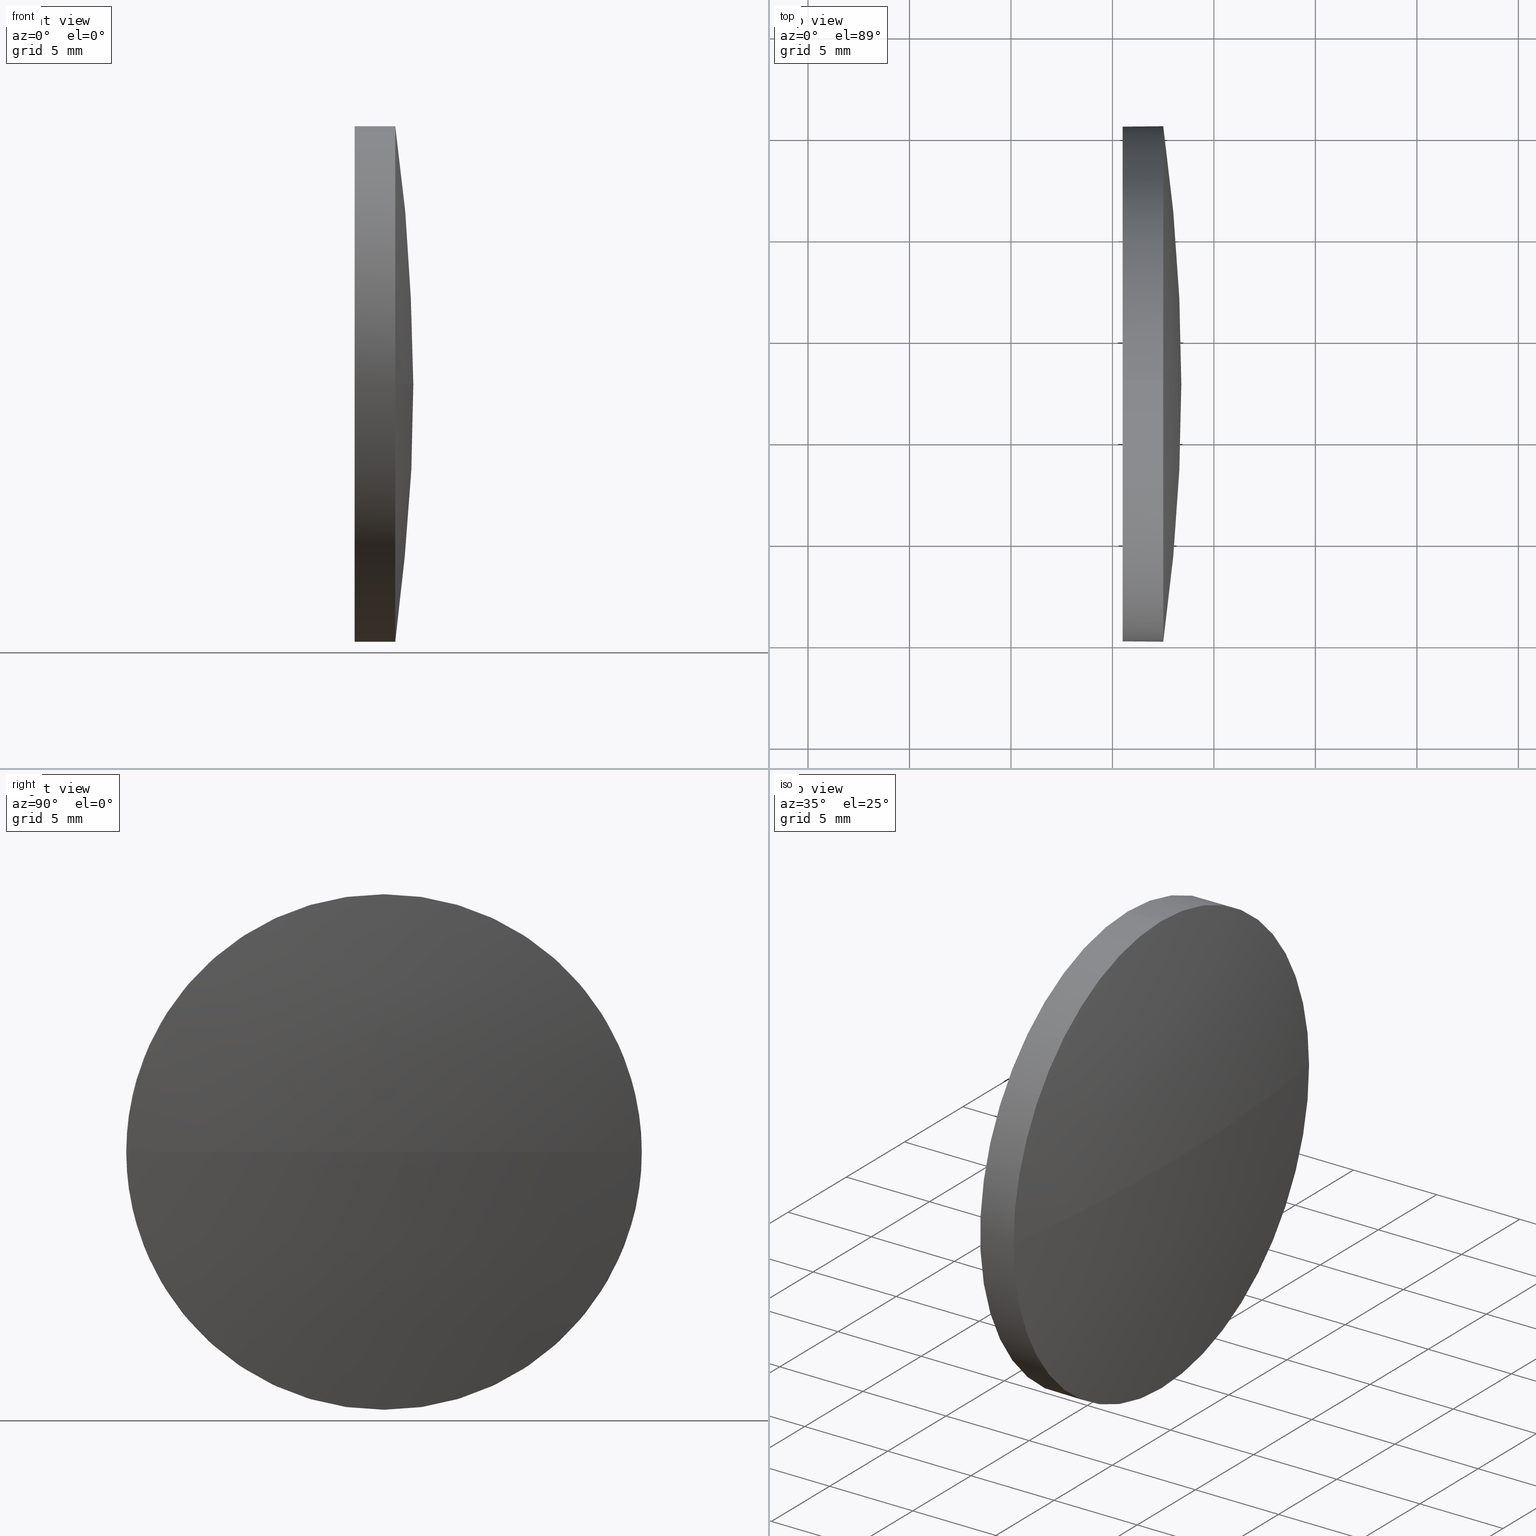
[diagram: canonical four-view strip — front | top / right | iso, engineering-drawing reading convention]
A machine part, canonical four-view strip (front | top / right | iso — engineering-drawing reading convention). The complete STEP part file that produces these views, byte-faithful:
ISO-10303-21;
HEADER;
FILE_DESCRIPTION (( 'STEP AP214' ),
    '1' );
FILE_NAME ('100379.STEP',
    '2019-06-04T07:54:46',
    ( '' ),
    ( '' ),
    'SwSTEP 2.0',
    'SolidWorks 2016',
    '' );
FILE_SCHEMA (( 'AUTOMOTIVE_DESIGN' ));
ENDSEC;

DATA;
#1 = VERTEX_POINT ( 'NONE', #12 ) ;
#2 = DIRECTION ( 'NONE',  ( 1.000000000000000000, 0.0000000000000000000, 0.0000000000000000000 ) ) ;
#3 = APPLICATION_PROTOCOL_DEFINITION ( 'draft international standard', 'automotive_design', 1998, #41 ) ;
#4 = CIRCLE ( 'NONE', #86, 12.70000000000000300 ) ;
#5 = MANIFOLD_SOLID_BREP ( '��ת1', #129 ) ;
#6 = COLOUR_RGB ( '',1.000000000000000000, 1.000000000000000000, 1.000000000000000000 ) ;
#7 = EDGE_CURVE ( 'NONE', #1, #80, #123, .T. ) ;
#8 = VERTEX_POINT ( 'NONE', #104 ) ;
#9 = DIRECTION ( 'NONE',  ( 0.0000000000000000000, 0.0000000000000000000, 1.000000000000000000 ) ) ;
#10 = CIRCLE ( 'NONE', #186, 12.70000000000000300 ) ;
#11 = DIRECTION ( 'NONE',  ( 0.0000000000000000000, -1.000000000000000000, 0.0000000000000000000 ) ) ;
#12 = CARTESIAN_POINT ( 'NONE',  ( 435.5040893559401000, 72.76896585251475400, -12.70000000000000300 ) ) ;
#13 = DIRECTION ( 'NONE',  ( -1.000000000000000000, -0.0000000000000000000, -0.0000000000000000000 ) ) ;
#14 = FACE_OUTER_BOUND ( 'NONE', #55, .T. ) ;
#15 = DIRECTION ( 'NONE',  ( -1.000000000000000000, -0.0000000000000000000, -0.0000000000000000000 ) ) ;
#16 = ORIENTED_EDGE ( 'NONE', *, *, #110, .F. ) ;
#17 = ADVANCED_FACE ( 'NONE', ( #143 ), #164, .F. ) ;
#18 =( LENGTH_UNIT ( ) NAMED_UNIT ( * ) SI_UNIT ( .MILLI., .METRE. ) );
#19 = DIRECTION ( 'NONE',  ( 0.0000000000000000000, 0.0000000000000000000, 1.000000000000000000 ) ) ;
#20 = MECHANICAL_DESIGN_GEOMETRIC_PRESENTATION_REPRESENTATION (  '', ( #176 ), #116 ) ;
#21 = CARTESIAN_POINT ( 'NONE',  ( 347.3401788407134100, 72.76896585251479600, 0.0000000000000000000 ) ) ;
#22 = EDGE_CURVE ( 'NONE', #177, #103, #150, .T. ) ;
#23 = ORIENTED_EDGE ( 'NONE', *, *, #58, .T. ) ;
#24 = DIRECTION ( 'NONE',  ( 0.0000000000000000000, -1.000000000000000000, -1.224646799147353000E-016 ) ) ;
#25 = DIRECTION ( 'NONE',  ( -1.000000000000000000, -0.0000000000000000000, -0.0000000000000000000 ) ) ;
#26 = EDGE_CURVE ( 'NONE', #98, #80, #96, .T. ) ;
#27 = SURFACE_SIDE_STYLE ('',( #161 ) ) ;
#28 = EDGE_LOOP ( 'NONE', ( #168, #172 ) ) ;
#29 = FACE_OUTER_BOUND ( 'NONE', #111, .T. ) ;
#30 =( LENGTH_UNIT ( ) NAMED_UNIT ( * ) SI_UNIT ( .MILLI., .METRE. ) );
#31 = ORIENTED_EDGE ( 'NONE', *, *, #58, .F. ) ;
#32 = PRESENTATION_STYLE_ASSIGNMENT (( #162 ) ) ;
#33 = SHAPE_DEFINITION_REPRESENTATION ( #157, #121 ) ;
#34 = EDGE_CURVE ( 'NONE', #177, #170, #119, .T. ) ;
#35 = ORIENTED_EDGE ( 'NONE', *, *, #22, .F. ) ;
#36 = CARTESIAN_POINT ( 'NONE',  ( 435.5040893559401000, 72.76896585251475400, 12.70000000000000300 ) ) ;
#37 = COLOUR_RGB ( '',1.000000000000000000, 1.000000000000000000, 1.000000000000000000 ) ;
#38 = DIRECTION ( 'NONE',  ( 0.0000000000000000000, 0.0000000000000000000, 1.000000000000000000 ) ) ;
#39 = CARTESIAN_POINT ( 'NONE',  ( 437.5040893559401000, 72.76896585251475400, 0.0000000000000000000 ) ) ;
#40 = DIRECTION ( 'NONE',  ( -1.000000000000000000, -0.0000000000000000000, -0.0000000000000000000 ) ) ;
#41 = APPLICATION_CONTEXT ( 'automotive_design' ) ;
#42 = VECTOR ( 'NONE', #13, 1000.000000000000000 ) ;
#43 = FILL_AREA_STYLE ('',( #73 ) ) ;
#44 = DIRECTION ( 'NONE',  ( -1.000000000000000000, -0.0000000000000000000, -0.0000000000000000000 ) ) ;
#45 =( GEOMETRIC_REPRESENTATION_CONTEXT ( 3 ) GLOBAL_UNCERTAINTY_ASSIGNED_CONTEXT ( ( #156 ) ) GLOBAL_UNIT_ASSIGNED_CONTEXT ( ( #30, #112, #159 ) ) REPRESENTATION_CONTEXT ( 'NONE', 'WORKASPACE' ) );
#46 = PRODUCT ( '100379', '100379', '', ( #167 ) ) ;
#47 = AXIS2_PLACEMENT_3D ( 'NONE', #90, #66, #11 ) ;
#48 = ORIENTED_EDGE ( 'NONE', *, *, #93, .F. ) ;
#49 = EDGE_CURVE ( 'NONE', #8, #103, #71, .T. ) ;
#50 =( NAMED_UNIT ( * ) PLANE_ANGLE_UNIT ( ) SI_UNIT ( $, .RADIAN. ) );
#51 = DIRECTION ( 'NONE',  ( -1.000000000000000000, -0.0000000000000000000, -0.0000000000000000000 ) ) ;
#52 = ORIENTED_EDGE ( 'NONE', *, *, #7, .F. ) ;
#53 = CARTESIAN_POINT ( 'NONE',  ( 437.5040893559401000, 72.76896585251475400, 12.70000000000000300 ) ) ;
#54 = DIRECTION ( 'NONE',  ( 0.0000000000000000000, -1.224646799147353200E-016, 1.000000000000000000 ) ) ;
#55 = EDGE_LOOP ( 'NONE', ( #35, #100, #126, #16 ) ) ;
#56 = SURFACE_STYLE_USAGE ( .BOTH. , #27 ) ;
#57 = AXIS2_PLACEMENT_3D ( 'NONE', #124, #40, #137 ) ;
#58 = EDGE_CURVE ( 'NONE', #8, #1, #146, .T. ) ;
#59 = AXIS2_PLACEMENT_3D ( 'NONE', #21, #94, #79 ) ;
#60 = ORIENTED_EDGE ( 'NONE', *, *, #49, .F. ) ;
#61 = AXIS2_PLACEMENT_3D ( 'NONE', #122, #54, #24 ) ;
#62 = CARTESIAN_POINT ( 'NONE',  ( 429.7994158084853200, 72.76896585251475400, 12.70000000000000300 ) ) ;
#63 = FILL_AREA_STYLE ('',( #134 ) ) ;
#64 = DIRECTION ( 'NONE',  ( 0.0000000000000000000, 0.0000000000000000000, 1.000000000000000000 ) ) ;
#65 = FACE_OUTER_BOUND ( 'NONE', #160, .T. ) ;
#66 = DIRECTION ( 'NONE',  ( 0.0000000000000000000, 0.0000000000000000000, 1.000000000000000000 ) ) ;
#67 = DIRECTION ( 'NONE',  ( 0.0000000000000000000, 0.0000000000000000000, 1.000000000000000000 ) ) ;
#68 = DIRECTION ( 'NONE',  ( -1.000000000000000000, -0.0000000000000000000, -0.0000000000000000000 ) ) ;
#69 = AXIS2_PLACEMENT_3D ( 'NONE', #152, #166, #183 ) ;
#70 = ORIENTED_EDGE ( 'NONE', *, *, #117, .F. ) ;
#71 = CIRCLE ( 'NONE', #173, 12.70000000000000300 ) ;
#72 = ORIENTED_EDGE ( 'NONE', *, *, #34, .F. ) ;
#73 = FILL_AREA_STYLE_COLOUR ( '', #6 ) ;
#74 = ORIENTED_EDGE ( 'NONE', *, *, #49, .T. ) ;
#75 = DIRECTION ( 'NONE',  ( 0.0000000000000000000, 0.0000000000000000000, -1.000000000000000000 ) ) ;
#76 = CYLINDRICAL_SURFACE ( 'NONE', #84, 12.70000000000000300 ) ;
#77 = CARTESIAN_POINT ( 'NONE',  ( 429.7994158084853200, 72.76896585251475400, 0.0000000000000000000 ) ) ;
#78 = CIRCLE ( 'NONE', #69, 12.70000000000000300 ) ;
#79 = DIRECTION ( 'NONE',  ( 0.0000000000000000000, -1.000000000000000000, 0.0000000000000000000 ) ) ;
#80 = VERTEX_POINT ( 'NONE', #36 ) ;
#81 = AXIS2_PLACEMENT_3D ( 'NONE', #106, #181, #120 ) ;
#82 = ADVANCED_FACE ( 'NONE', ( #14 ), #140, .T. ) ;
#83 = VECTOR ( 'NONE', #25, 1000.000000000000000 ) ;
#84 = AXIS2_PLACEMENT_3D ( 'NONE', #77, #15, #108 ) ;
#85 = PRESENTATION_STYLE_ASSIGNMENT (( #56 ) ) ;
#86 = AXIS2_PLACEMENT_3D ( 'NONE', #39, #165, #64 ) ;
#87 = UNCERTAINTY_MEASURE_WITH_UNIT (LENGTH_MEASURE( 1.000000000000000100E-005 ), #18, 'distance_accuracy_value', 'NONE');
#88 = EDGE_LOOP ( 'NONE', ( #182, #23, #48, #174, #148 ) ) ;
#89 = DIRECTION ( 'NONE',  ( -1.000000000000000000, -0.0000000000000000000, -0.0000000000000000000 ) ) ;
#90 = CARTESIAN_POINT ( 'NONE',  ( 347.3401788407134100, 72.76896585251479600, 0.0000000000000000000 ) ) ;
#91 = CARTESIAN_POINT ( 'NONE',  ( 347.3401788407134100, 72.76896585251479600, 0.0000000000000000000 ) ) ;
#92 = PRODUCT_RELATED_PRODUCT_CATEGORY ( 'part', '', ( #46 ) ) ;
#93 = EDGE_CURVE ( 'NONE', #80, #1, #10, .T. ) ;
#94 = DIRECTION ( 'NONE',  ( 0.0000000000000000000, 0.0000000000000000000, 1.000000000000000000 ) ) ;
#95 = ADVANCED_FACE ( 'NONE', ( #65 ), #185, .T. ) ;
#96 = LINE ( 'NONE', #62, #42 ) ;
#97 =( NAMED_UNIT ( * ) PLANE_ANGLE_UNIT ( ) SI_UNIT ( $, .RADIAN. ) );
#98 = VERTEX_POINT ( 'NONE', #53 ) ;
#99 = AXIS2_PLACEMENT_3D ( 'NONE', #118, #44, #9 ) ;
#100 = ORIENTED_EDGE ( 'NONE', *, *, #34, .T. ) ;
#101 = STYLED_ITEM ( 'NONE', ( #32 ), #5 ) ;
#102 = SPHERICAL_SURFACE ( 'NONE', #59, 91.05394422757211700 ) ;
#103 = VERTEX_POINT ( 'NONE', #178 ) ;
#104 = CARTESIAN_POINT ( 'NONE',  ( 437.5040893559401000, 72.76896585251475400, -12.70000000000000300 ) ) ;
#105 = SURFACE_SIDE_STYLE ('',( #153 ) ) ;
#106 = CARTESIAN_POINT ( 'NONE',  ( 435.5040893559401000, 72.76896585251475400, 0.0000000000000000000 ) ) ;
#107 = ORIENTED_EDGE ( 'NONE', *, *, #26, .T. ) ;
#108 = DIRECTION ( 'NONE',  ( 0.0000000000000000000, 0.0000000000000000000, 1.000000000000000000 ) ) ;
#109 = FACE_OUTER_BOUND ( 'NONE', #88, .T. ) ;
#110 = EDGE_CURVE ( 'NONE', #103, #98, #4, .T. ) ;
#111 = EDGE_LOOP ( 'NONE', ( #72, #145, #60, #70 ) ) ;
#112 =( NAMED_UNIT ( * ) PLANE_ANGLE_UNIT ( ) SI_UNIT ( $, .RADIAN. ) );
#113 = PRODUCT_DEFINITION ( 'δ֪', '', #171, #147 ) ;
#114 = EDGE_CURVE ( 'NONE', #98, #170, #78, .T. ) ;
#115 = CARTESIAN_POINT ( 'NONE',  ( 0.0000000000000000000, 0.0000000000000000000, 0.0000000000000000000 ) ) ;
#116 =( GEOMETRIC_REPRESENTATION_CONTEXT ( 3 ) GLOBAL_UNCERTAINTY_ASSIGNED_CONTEXT ( ( #87 ) ) GLOBAL_UNIT_ASSIGNED_CONTEXT ( ( #18, #97, #144 ) ) REPRESENTATION_CONTEXT ( 'NONE', 'WORKASPACE' ) );
#117 = EDGE_CURVE ( 'NONE', #170, #8, #179, .T. ) ;
#118 = CARTESIAN_POINT ( 'NONE',  ( 435.5040893559401000, 72.76896585251475400, 0.0000000000000000000 ) ) ;
#119 = CIRCLE ( 'NONE', #61, 91.05394422757211700 ) ;
#120 = DIRECTION ( 'NONE',  ( 0.0000000000000000000, 0.0000000000000000000, -1.000000000000000000 ) ) ;
#121 = ADVANCED_BREP_SHAPE_REPRESENTATION ( '100379', ( #5, #158 ), #45 ) ;
#122 = CARTESIAN_POINT ( 'NONE',  ( 347.3401788407134100, 72.76896585251479600, 0.0000000000000000000 ) ) ;
#123 = CIRCLE ( 'NONE', #99, 12.70000000000000300 ) ;
#124 = CARTESIAN_POINT ( 'NONE',  ( 437.5040893559401000, 72.76896585251475400, 0.0000000000000000000 ) ) ;
#125 = MECHANICAL_DESIGN_GEOMETRIC_PRESENTATION_REPRESENTATION (  '', ( #101 ), #155 ) ;
#126 = ORIENTED_EDGE ( 'NONE', *, *, #114, .F. ) ;
#127 = CARTESIAN_POINT ( 'NONE',  ( 437.5040893559401000, 85.46896585251484200, 1.555301434917144000E-015 ) ) ;
#128 = ADVANCED_FACE ( 'NONE', ( #109 ), #76, .T. ) ;
#129 = CLOSED_SHELL ( 'NONE', ( #128, #82, #139, #95, #17 ) ) ;
#130 = AXIS2_PLACEMENT_3D ( 'NONE', #135, #68, #67 ) ;
#131 = ORIENTED_EDGE ( 'NONE', *, *, #110, .T. ) ;
#132 = PRESENTATION_LAYER_ASSIGNMENT (  '', '', ( #101 ) ) ;
#133 = DIRECTION ( 'NONE',  ( 0.0000000000000000000, 0.0000000000000000000, 1.000000000000000000 ) ) ;
#134 = FILL_AREA_STYLE_COLOUR ( '', #37 ) ;
#135 = CARTESIAN_POINT ( 'NONE',  ( 429.7994158084853200, 72.76896585251475400, 0.0000000000000000000 ) ) ;
#136 = CARTESIAN_POINT ( 'NONE',  ( 429.7994158084853200, 72.76896585251475400, -12.70000000000000300 ) ) ;
#137 = DIRECTION ( 'NONE',  ( 0.0000000000000000000, 0.0000000000000000000, 1.000000000000000000 ) ) ;
#138 = PRESENTATION_LAYER_ASSIGNMENT (  '', '', ( #176 ) ) ;
#139 = ADVANCED_FACE ( 'NONE', ( #29 ), #102, .T. ) ;
#140 = SPHERICAL_SURFACE ( 'NONE', #47, 91.05394422757211700 ) ;
#141 = CARTESIAN_POINT ( 'NONE',  ( 438.3941230682855200, 72.76896585251479600, 0.0000000000000000000 ) ) ;
#142 =( NAMED_UNIT ( * ) SI_UNIT ( $, .STERADIAN. ) SOLID_ANGLE_UNIT ( ) );
#143 = FACE_OUTER_BOUND ( 'NONE', #28, .T. ) ;
#144 =( NAMED_UNIT ( * ) SI_UNIT ( $, .STERADIAN. ) SOLID_ANGLE_UNIT ( ) );
#145 = ORIENTED_EDGE ( 'NONE', *, *, #22, .T. ) ;
#146 = LINE ( 'NONE', #136, #83 ) ;
#147 = PRODUCT_DEFINITION_CONTEXT ( 'detailed design', #184, 'design' ) ;
#148 = ORIENTED_EDGE ( 'NONE', *, *, #114, .T. ) ;
#149 =( LENGTH_UNIT ( ) NAMED_UNIT ( * ) SI_UNIT ( .MILLI., .METRE. ) );
#150 = CIRCLE ( 'NONE', #163, 91.05394422757213100 ) ;
#151 = CARTESIAN_POINT ( 'NONE',  ( 437.5040893559401000, 72.76896585251475400, 0.0000000000000000000 ) ) ;
#152 = CARTESIAN_POINT ( 'NONE',  ( 437.5040893559401000, 72.76896585251475400, 0.0000000000000000000 ) ) ;
#153 = SURFACE_STYLE_FILL_AREA ( #63 ) ;
#154 = DIRECTION ( 'NONE',  ( -1.000000000000000000, 0.0000000000000000000, 0.0000000000000000000 ) ) ;
#155 =( GEOMETRIC_REPRESENTATION_CONTEXT ( 3 ) GLOBAL_UNCERTAINTY_ASSIGNED_CONTEXT ( ( #175 ) ) GLOBAL_UNIT_ASSIGNED_CONTEXT ( ( #149, #50, #142 ) ) REPRESENTATION_CONTEXT ( 'NONE', 'WORKASPACE' ) );
#156 = UNCERTAINTY_MEASURE_WITH_UNIT (LENGTH_MEASURE( 1.000000000000000100E-005 ), #30, 'distance_accuracy_value', 'NONE');
#157 = PRODUCT_DEFINITION_SHAPE ( 'NONE', 'NONE',  #113 ) ;
#158 = AXIS2_PLACEMENT_3D ( 'NONE', #115, #19, #2 ) ;
#159 =( NAMED_UNIT ( * ) SI_UNIT ( $, .STERADIAN. ) SOLID_ANGLE_UNIT ( ) );
#160 = EDGE_LOOP ( 'NONE', ( #31, #74, #131, #107, #52 ) ) ;
#161 = SURFACE_STYLE_FILL_AREA ( #43 ) ;
#162 = SURFACE_STYLE_USAGE ( .BOTH. , #105 ) ;
#163 = AXIS2_PLACEMENT_3D ( 'NONE', #91, #75, #154 ) ;
#164 = PLANE ( 'NONE',  #81 ) ;
#165 = DIRECTION ( 'NONE',  ( -1.000000000000000000, -0.0000000000000000000, -0.0000000000000000000 ) ) ;
#166 = DIRECTION ( 'NONE',  ( -1.000000000000000000, -0.0000000000000000000, -0.0000000000000000000 ) ) ;
#167 = PRODUCT_CONTEXT ( 'NONE', #41, 'mechanical' ) ;
#168 = ORIENTED_EDGE ( 'NONE', *, *, #93, .T. ) ;
#169 = APPLICATION_PROTOCOL_DEFINITION ( 'draft international standard', 'automotive_design', 1998, #184 ) ;
#170 = VERTEX_POINT ( 'NONE', #127 ) ;
#171 = PRODUCT_DEFINITION_FORMATION_WITH_SPECIFIED_SOURCE ( '�κ�', '', #46, .NOT_KNOWN. ) ;
#172 = ORIENTED_EDGE ( 'NONE', *, *, #7, .T. ) ;
#173 = AXIS2_PLACEMENT_3D ( 'NONE', #151, #51, #38 ) ;
#174 = ORIENTED_EDGE ( 'NONE', *, *, #26, .F. ) ;
#175 = UNCERTAINTY_MEASURE_WITH_UNIT (LENGTH_MEASURE( 1.000000000000000100E-005 ), #149, 'distance_accuracy_value', 'NONE');
#176 = STYLED_ITEM ( 'NONE', ( #85 ), #121 ) ;
#177 = VERTEX_POINT ( 'NONE', #141 ) ;
#178 = CARTESIAN_POINT ( 'NONE',  ( 437.5040893559401000, 60.06896585251471500, 0.0000000000000000000 ) ) ;
#179 = CIRCLE ( 'NONE', #57, 12.70000000000000300 ) ;
#180 = CARTESIAN_POINT ( 'NONE',  ( 435.5040893559401000, 72.76896585251475400, 0.0000000000000000000 ) ) ;
#181 = DIRECTION ( 'NONE',  ( 1.000000000000000000, 0.0000000000000000000, 0.0000000000000000000 ) ) ;
#182 = ORIENTED_EDGE ( 'NONE', *, *, #117, .T. ) ;
#183 = DIRECTION ( 'NONE',  ( 0.0000000000000000000, 0.0000000000000000000, 1.000000000000000000 ) ) ;
#184 = APPLICATION_CONTEXT ( 'automotive_design' ) ;
#185 = CYLINDRICAL_SURFACE ( 'NONE', #130, 12.70000000000000300 ) ;
#186 = AXIS2_PLACEMENT_3D ( 'NONE', #180, #89, #133 ) ;
ENDSEC;
END-ISO-10303-21;
